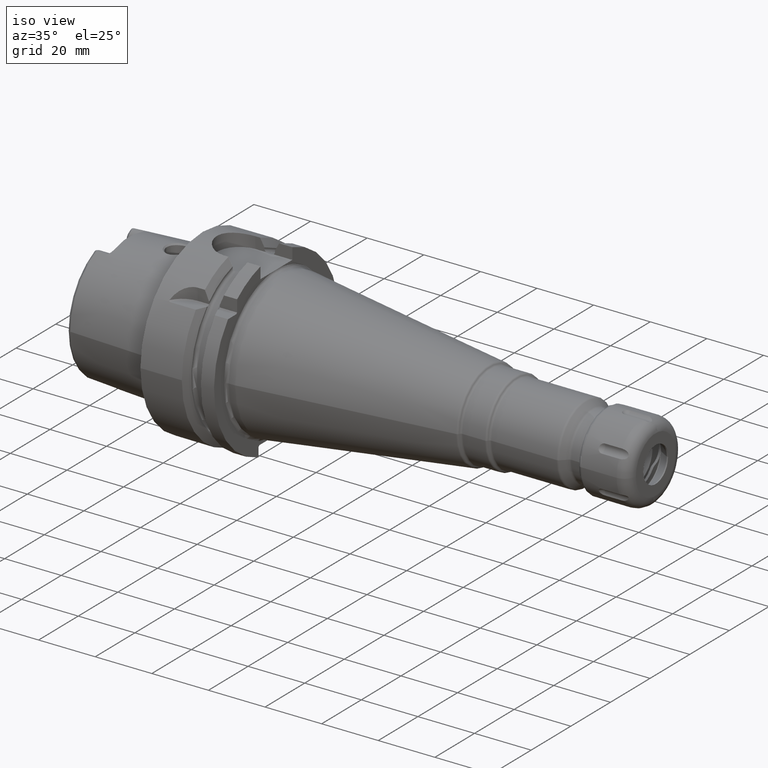
[diagram: clean part render]
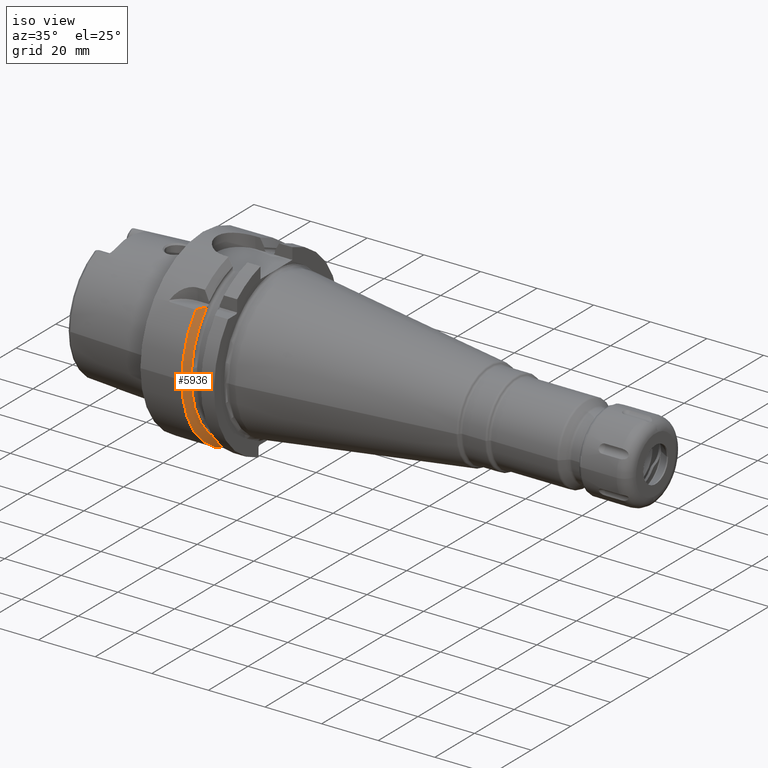
[diagram: same view with one face highlighted and labeled with its STEP entity id]
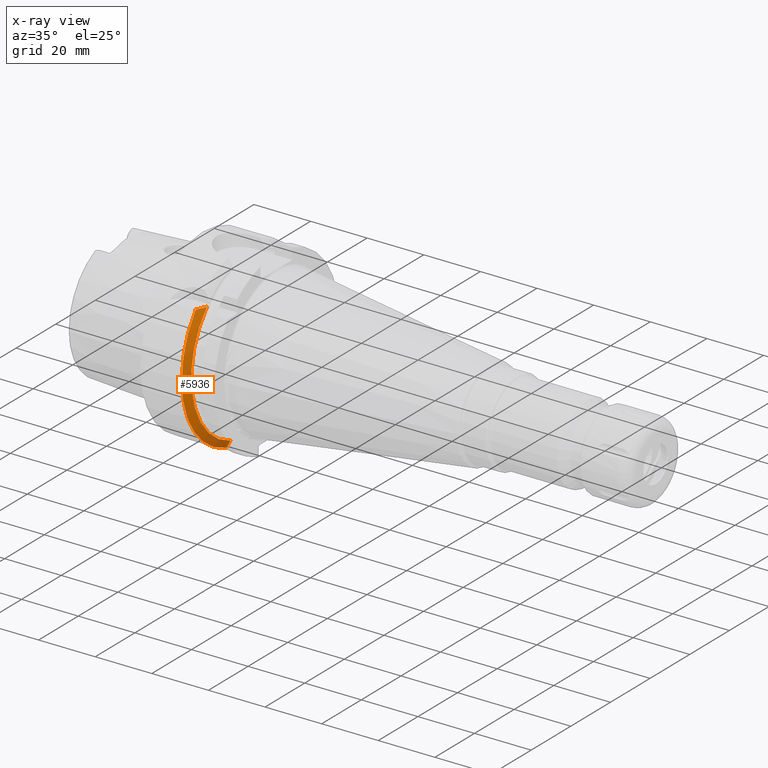
[diagram: x-ray of the same camera — body ghosted, the highlighted face saturated]
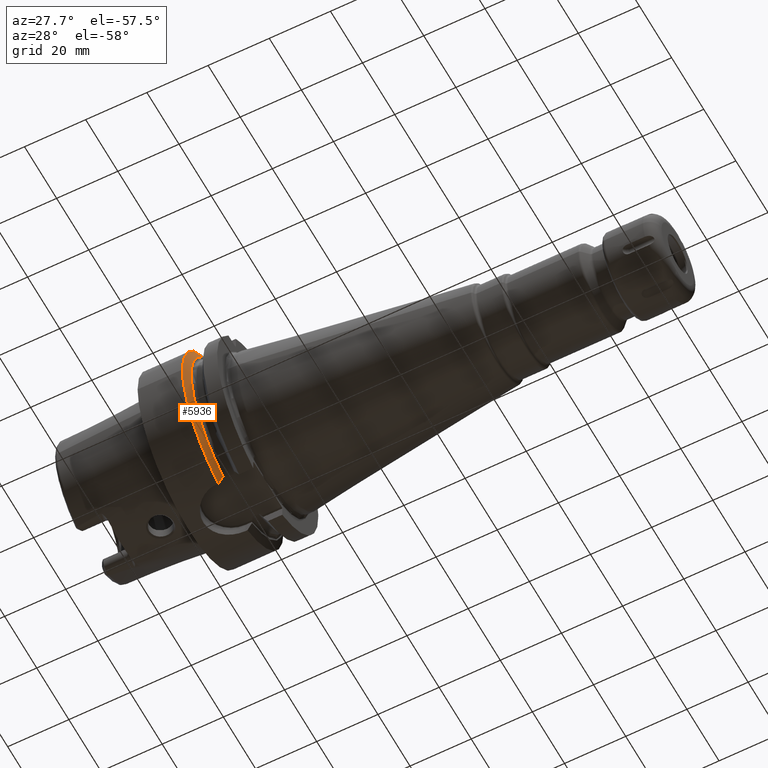
[diagram: same view with one face highlighted and labeled with its STEP entity id]
A machine part, iso view. The second image highlights one B-rep face of the part: STEP entity #5936.
The next image is the same camera in x-ray: the body ghosted, the highlighted face saturated — about 0% of this face is hidden behind the body in this view.
A second angle (auxiliary view) of the same face is appended — the face is thin or edge-on in the first view.
In plain terms, the highlighted conical surface has half-angle 60 deg.
Its self-contained STEP definition (entity closure, byte-faithful):
#1106=CARTESIAN_POINT('',(1.462250092524E1,0.E0,0.E0));
#1107=DIRECTION('',(1.E0,0.E0,0.E0));
#1108=DIRECTION('',(0.E0,-7.764663384879E-1,6.301587301587E-1));
#1109=AXIS2_PLACEMENT_3D('',#1106,#1107,#1108);
#2072=CARTESIAN_POINT('',(1.462250092524E1,0.E0,0.E0));
#2073=DIRECTION('',(1.E0,0.E0,0.E0));
#2074=DIRECTION('',(0.E0,-1.E0,0.E0));
#2075=AXIS2_PLACEMENT_3D('',#2072,#2073,#2074);
#2227=CARTESIAN_POINT('',(1.6125E1,-2.100115501712E1,1.985E1));
#2228=CARTESIAN_POINT('',(1.597384221917E1,-2.136140971936E1,1.985E1));
#2229=CARTESIAN_POINT('',(1.566115300621E1,-2.209786160622E1,1.985E1));
#2230=CARTESIAN_POINT('',(1.516255881786E1,-2.324577082409E1,1.985E1));
#2231=CARTESIAN_POINT('',(1.480632619355E1,-2.404863363206E1,1.985E1));
#2232=CARTESIAN_POINT('',(1.462250092524E1,-2.445868966237E1,1.985E1));
#2234=CARTESIAN_POINT('',(1.6125E1,0.E0,0.E0));
#2235=DIRECTION('',(1.E0,0.E0,0.E0));
#2236=DIRECTION('',(0.E0,-7.267440361428E-1,6.869083679290E-1));
#2237=AXIS2_PLACEMENT_3D('',#2234,#2235,#2236);
#2239=CARTESIAN_POINT('',(1.6125E1,-9.0175E0,-2.745461174016E1));
#2240=CARTESIAN_POINT('',(1.596600098125E1,-9.0175E0,-2.774448053791E1));
#2241=CARTESIAN_POINT('',(1.564270948849E1,-9.0175E0,-2.833297398512E1));
#2242=CARTESIAN_POINT('',(1.514210518984E1,-9.0175E0,-2.924158789478E1));
#2243=CARTESIAN_POINT('',(1.479749126019E1,-9.0175E0,-2.986536377611E1));
#2244=CARTESIAN_POINT('',(1.462250092524E1,-9.0175E0,-3.018169467989E1));
#3118=CARTESIAN_POINT('',(1.462250092524E1,-3.15E1,0.E0));
#3119=VERTEX_POINT('',#3118);
#3278=CARTESIAN_POINT('',(1.462250092524E1,-9.0175E0,-3.018169467989E1));
#3279=VERTEX_POINT('',#3278);
#3284=CARTESIAN_POINT('',(1.6125E1,-9.0175E0,-2.745461174016E1));
#3286=VERTEX_POINT('',#3284);
#3320=CARTESIAN_POINT('',(1.6125E1,-2.100115501712E1,1.985E1));
#3322=VERTEX_POINT('',#3320);
#3336=VERTEX_POINT('',#2232);
#5923=CARTESIAN_POINT('',(1.537375046262E1,0.E0,0.E0));
#5924=DIRECTION('',(-1.E0,0.E0,0.E0));
#5925=DIRECTION('',(0.E0,1.E0,0.E0));
#5926=AXIS2_PLACEMENT_3D('',#5923,#5924,#5925);
#5927=CONICAL_SURFACE('',#5926,3.019879763210E1,6.E1);
#5928=ORIENTED_EDGE('',*,*,#5862,.F.);
#5929=ORIENTED_EDGE('',*,*,#5638,.T.);
#5931=ORIENTED_EDGE('',*,*,#5930,.T.);
#5932=ORIENTED_EDGE('',*,*,#5750,.F.);
#5933=ORIENTED_EDGE('',*,*,#4705,.F.);
#5934=EDGE_LOOP('',(#5928,#5929,#5931,#5932,#5933));
#5935=FACE_OUTER_BOUND('',#5934,.F.);
#5936=ADVANCED_FACE('',(#5935),#5927,.T.);
#1110=CIRCLE('',#1109,3.15E1);
#2076=CIRCLE('',#2075,3.15E1);
#2233=B_SPLINE_CURVE_WITH_KNOTS('',3,(#2227,#2228,#2229,#2230,#2231,#2232),
.UNSPECIFIED.,.F.,.F.,(4,1,1,4),(0.E0,3.333333333333E-1,6.666666666667E-1,1.E0),
.UNSPECIFIED.);
#2238=CIRCLE('',#2237,2.889759526419E1);
#2245=B_SPLINE_CURVE_WITH_KNOTS('',3,(#2239,#2240,#2241,#2242,#2243,#2244),
.UNSPECIFIED.,.F.,.F.,(4,1,1,4),(0.E0,3.333333333333E-1,6.666666666667E-1,1.E0),
.UNSPECIFIED.);
#4705=EDGE_CURVE('',#3336,#3119,#1110,.T.);
#5638=EDGE_CURVE('',#3322,#3286,#2238,.T.);
#5750=EDGE_CURVE('',#3119,#3279,#2076,.T.);
#5862=EDGE_CURVE('',#3322,#3336,#2233,.T.);
#5930=EDGE_CURVE('',#3286,#3279,#2245,.T.);